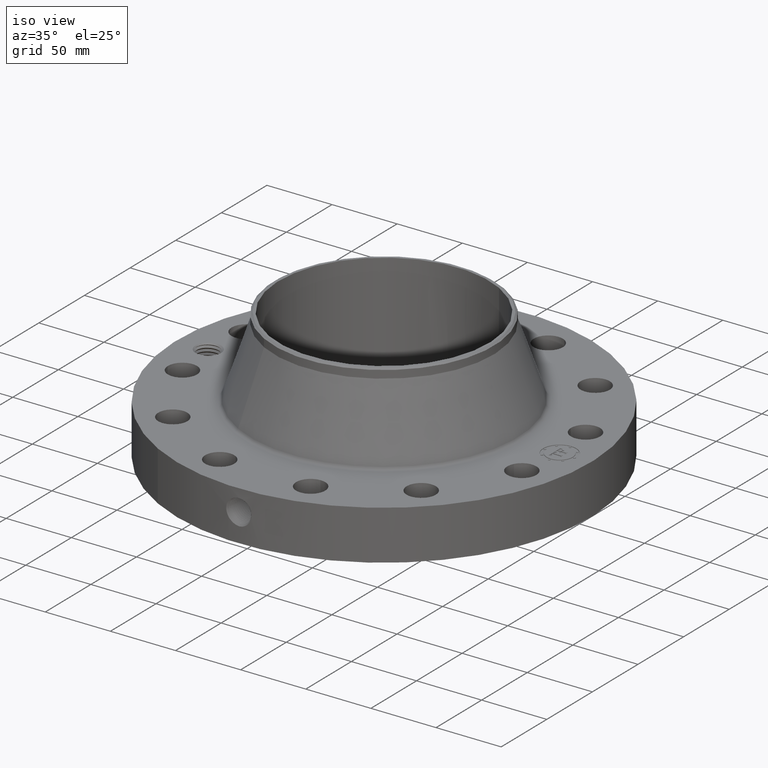
[diagram: clean part render]
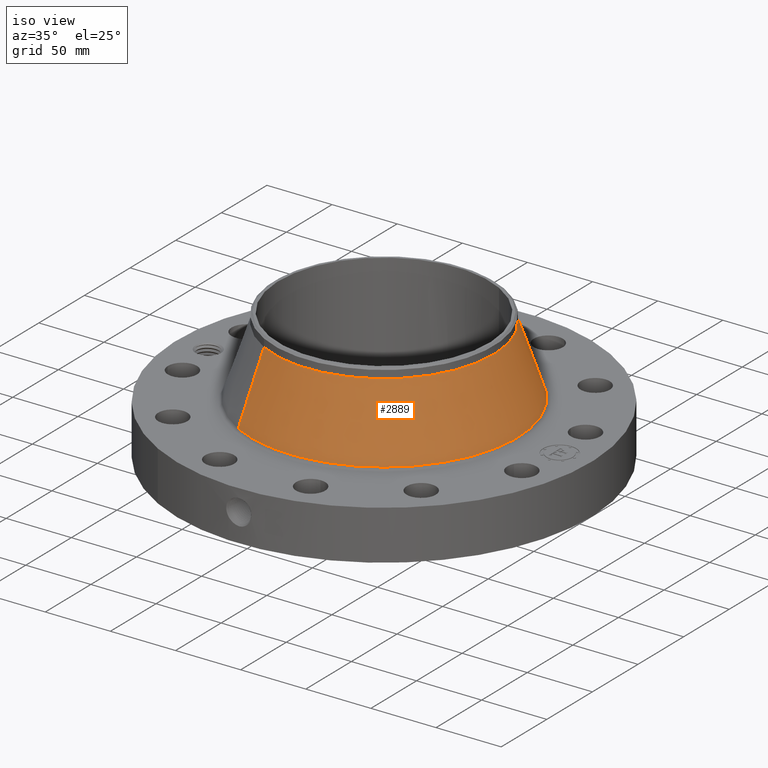
[diagram: same view with one face highlighted and labeled with its STEP entity id]
A machine part, iso view. The second image highlights one B-rep face of the part: STEP entity #2889.
In plain terms, the highlighted conical surface has half-angle 19.034 deg.
Its self-contained STEP definition (entity closure, byte-faithful):
#2094=AXIS2_PLACEMENT_3D('Circle Axis2P3D',#2092,#2093,$) ;
#2862=AXIS2_PLACEMENT_3D('Cone Axis2P3D',#2859,#2860,#2861) ;
#2873=AXIS2_PLACEMENT_3D('Circle Axis2P3D',#2871,#2872,$) ;
#2089=CARTESIAN_POINT('Vertex',(1.93309283,3.53850269025,1.64086426291)) ;
#2092=CARTESIAN_POINT('Axis2P3D Location',(0.,0.,1.64086426291)) ;
#2096=CARTESIAN_POINT('Vertex',(-1.93309283,-3.53850269025,1.64086426291)) ;
#2859=CARTESIAN_POINT('Axis2P3D Location',(0.,0.,3.71945884159)) ;
#2864=CARTESIAN_POINT('Line Origine',(1.76119424524,3.22384444147,2.68016155225)) ;
#2868=CARTESIAN_POINT('Vertex',(1.58929566048,2.90918619268,3.71945884159)) ;
#2871=CARTESIAN_POINT('Axis2P3D Location',(0.,0.,3.71945884159)) ;
#2875=CARTESIAN_POINT('Vertex',(-1.58929566048,-2.90918619268,3.71945884159)) ;
#2878=CARTESIAN_POINT('Line Origine',(-1.76119424524,-3.22384444147,2.68016155225)) ;
#2093=DIRECTION('Axis2P3D Direction',(0.,0.,-0.0393700787402)) ;
#2860=DIRECTION('Axis2P3D Direction',(0.,0.,-0.0393700787402)) ;
#2861=DIRECTION('Axis2P3D XDirection',(-0.0188750212049,-0.0345504945626,0.)) ;
#2865=DIRECTION('Vector Direction',(0.00615573222987,0.0112679922649,-0.0372175014078)) ;
#2872=DIRECTION('Axis2P3D Direction',(0.,0.,-0.0393700787402)) ;
#2879=DIRECTION('Vector Direction',(-0.00615573222987,-0.0112679922649,-0.0372175014078)) ;
#2866=VECTOR('Line Direction',#2865,0.0393700787402) ;
#2880=VECTOR('Line Direction',#2879,0.0393700787402) ;
#2884=ORIENTED_EDGE('',*,*,#2098,.F.) ;
#2885=ORIENTED_EDGE('',*,*,#2870,.T.) ;
#2886=ORIENTED_EDGE('',*,*,#2877,.T.) ;
#2887=ORIENTED_EDGE('',*,*,#2882,.F.) ;
#2889=ADVANCED_FACE('PartBody',(#2888),#2863,.T.) ;
#2095=CIRCLE('generated circle',#2094,4.03210232737) ;
#2874=CIRCLE('generated circle',#2873,3.31500000001) ;
#2863=CONICAL_SURFACE('Cone',#2862,3.31500000001,0.33220804674) ;
#2098=EDGE_CURVE('',#2090,#2097,#2095,.T.) ;
#2870=EDGE_CURVE('',#2090,#2869,#2867,.F.) ;
#2877=EDGE_CURVE('',#2869,#2876,#2874,.T.) ;
#2882=EDGE_CURVE('',#2097,#2876,#2881,.F.) ;
#2883=EDGE_LOOP('',(#2884,#2885,#2886,#2887)) ;
#2888=FACE_OUTER_BOUND('',#2883,.T.) ;
#2867=LINE('Line',#2864,#2866) ;
#2881=LINE('Line',#2878,#2880) ;
#2090=VERTEX_POINT('',#2089) ;
#2097=VERTEX_POINT('',#2096) ;
#2869=VERTEX_POINT('',#2868) ;
#2876=VERTEX_POINT('',#2875) ;